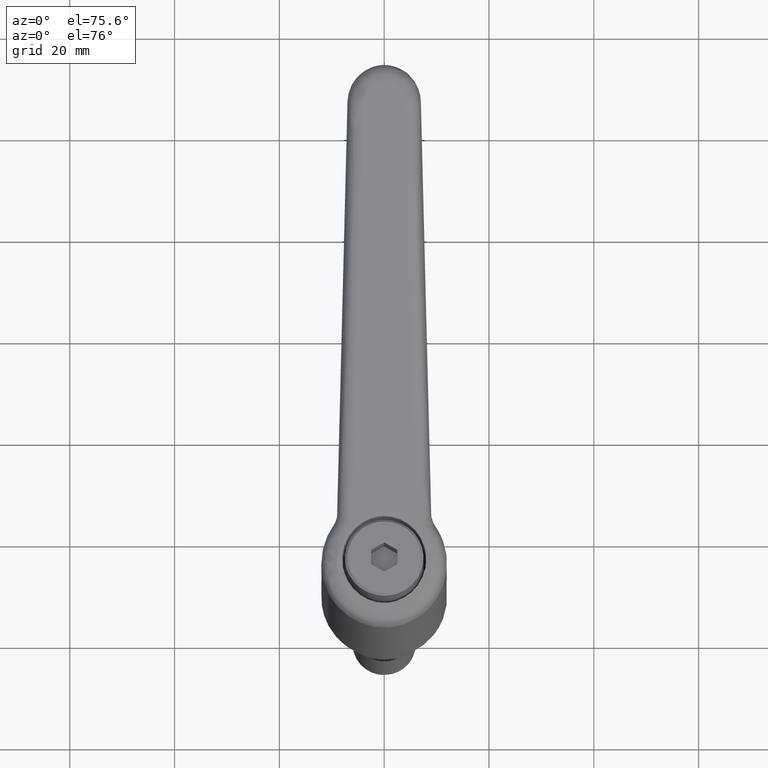
[diagram: clean part render]
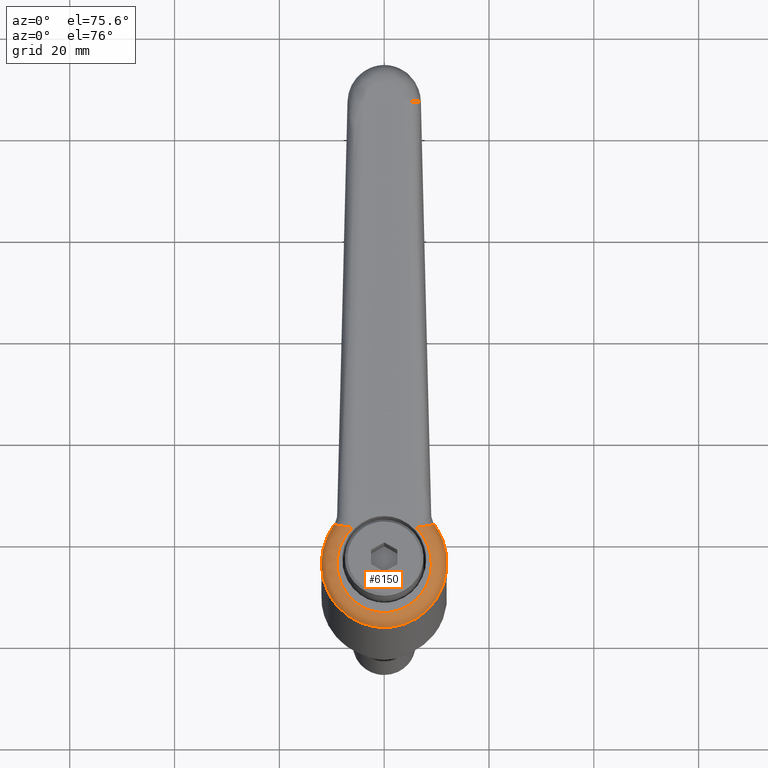
[diagram: same view with one face highlighted and labeled with its STEP entity id]
A machine part, auxiliary view. The second image highlights one B-rep face of the part: STEP entity #6150.
In plain terms, the highlighted face is a freeform B-spline surface patch.
Its self-contained STEP definition (entity closure, byte-faithful):
#1972=CARTESIAN_POINT('',(4.274928216684376,-11.212715493656290,38.901665560539627));
#1973=VERTEX_POINT('',#1972);
#1974=CARTESIAN_POINT('',(-5.540992449780494,10.644125265674511,36.919617074679749));
#1975=VERTEX_POINT('',#1974);
#1976=CARTESIAN_POINT('',(4.274928216684376,-11.212715493656287,38.901665560539634));
#1977=CARTESIAN_POINT('',(-3.362617988830460,-14.124583815908773,37.359469067857439));
#1978=CARTESIAN_POINT('',(-8.868775530244234,-8.083613596884504,36.247652849136401));
#1979=CARTESIAN_POINT('',(-16.236739138144436,-0.000000224872017,34.759896391643792));
#1980=CARTESIAN_POINT('',(-8.868776767336270,8.083613376882697,36.247660168146929));
#1981=CARTESIAN_POINT('',(-7.432376901434004,9.659530965654611,36.537702866726697));
#1982=CARTESIAN_POINT('',(-5.540992449780494,10.644125265674511,36.919617074679756));
#1990=(BOUNDED_CURVE()B_SPLINE_CURVE(2,(#1976,#1977,#1978,#1979,#1980,#1981,#1982),.UNSPECIFIED.,.F.,.U.)B_SPLINE_CURVE_WITH_KNOTS((3,2,2,3),(0.066645576460034,0.333333333333333,0.666666666666667,0.748931757954431),.UNSPECIFIED.)CURVE()GEOMETRIC_REPRESENTATION_ITEM()RATIONAL_B_SPLINE_CURVE((0.916520508219528,0.791235227165871,1.0,0.739064670882372,1.0,0.935602393989807,0.902990837602466))REPRESENTATION_ITEM(''));
#1991=EDGE_CURVE('',#1973,#1975,#1990,.T.);
#2077=CARTESIAN_POINT('',(7.229237784405140,-9.578001934460499,39.498216051846001));
#2078=VERTEX_POINT('',#2077);
#2079=CARTESIAN_POINT('',(7.229237784405140,-9.578001934460499,39.498216051846001));
#2080=CARTESIAN_POINT('',(5.868227456626006,-10.605258929029265,39.223393060285360));
#2081=CARTESIAN_POINT('',(4.274928216684376,-11.212715493656287,38.901665560539634));
#2089=(BOUNDED_CURVE()B_SPLINE_CURVE(2,(#2079,#2080,#2081),.UNSPECIFIED.,.F.,.U.)B_SPLINE_CURVE_WITH_KNOTS((3,3),(0.0,0.066645576460034),.UNSPECIFIED.)CURVE()GEOMETRIC_REPRESENTATION_ITEM()RATIONAL_B_SPLINE_CURVE((1.0,0.947829443716501,0.916520508219528))REPRESENTATION_ITEM(''));
#2090=EDGE_CURVE('',#2078,#1973,#2089,.T.);
#2124=CARTESIAN_POINT('',(7.229237784405140,9.578001934460499,39.498216051846001));
#2125=VERTEX_POINT('',#2124);
#2126=CARTESIAN_POINT('',(-5.540992449780494,10.644125265674511,36.919617074679756));
#2127=CARTESIAN_POINT('',(1.180750076675055,14.143249606889553,38.276889398960996));
#2128=CARTESIAN_POINT('',(7.229237784405140,9.578001934460499,39.498216051846001));
#2136=(BOUNDED_CURVE()B_SPLINE_CURVE(2,(#2126,#2127,#2128),.UNSPECIFIED.,.F.,.U.)B_SPLINE_CURVE_WITH_KNOTS((3,3),(0.748931757954431,1.0),.UNSPECIFIED.)CURVE()GEOMETRIC_REPRESENTATION_ITEM()RATIONAL_B_SPLINE_CURVE((0.902990837602466,0.803462276892565,1.0))REPRESENTATION_ITEM(''));
#2137=EDGE_CURVE('',#1975,#2125,#2136,.T.);
#4712=CARTESIAN_POINT('',(5.899904612967671,6.031578376217630,42.733727815799909));
#4713=VERTEX_POINT('',#4712);
#4714=CARTESIAN_POINT('',(7.193343850307760,9.562292847660899,39.954205445489549));
#4715=VERTEX_POINT('',#4714);
#4716=CARTESIAN_POINT('',(5.899904612967690,6.031578376217580,42.733727815799952));
#4717=CARTESIAN_POINT('',(5.903062447001243,6.058380017504835,42.734578001869821));
#4718=CARTESIAN_POINT('',(5.906329918537725,6.085553640101304,42.735233499928150));
#4719=CARTESIAN_POINT('',(5.913012914266242,6.139714808692082,42.736120896506108));
#4720=CARTESIAN_POINT('',(5.923263585534055,6.220871383675459,42.736822124183490));
#4721=CARTESIAN_POINT('',(5.934195713644809,6.301769850626026,42.735606864537857));
#4722=CARTESIAN_POINT('',(5.956977628652039,6.463215032417098,42.730542391711637));
#4723=CARTESIAN_POINT('',(5.973388286783441,6.570376563205748,42.723657719487449));
#4724=CARTESIAN_POINT('',(6.008718955725053,6.783713625198190,42.702378815481651));
#4725=CARTESIAN_POINT('',(6.027638448427934,6.889889375569534,42.687986332520943));
#4726=CARTESIAN_POINT('',(6.057971486509559,7.048365318422076,42.660296455485017));
#4727=CARTESIAN_POINT('',(6.068425930795687,7.101140585877575,42.650028428734160));
#4728=CARTESIAN_POINT('',(6.089860006844097,7.205735029833877,42.627516861698297));
#4729=CARTESIAN_POINT('',(6.100849572806831,7.257611983315011,42.615266569351540));
#4730=CARTESIAN_POINT('',(6.157149928723335,7.514866896797621,42.548954995472229));
#4731=CARTESIAN_POINT('',(6.206490136694312,7.713902261740103,42.479826131231142));
#4732=CARTESIAN_POINT('',(6.273634826152222,7.953363390981745,42.370920093256473));
#4733=CARTESIAN_POINT('',(6.287339115920344,8.000785769535757,42.348006447096743));
#4734=CARTESIAN_POINT('',(6.315309278628825,8.094654127320540,42.299818340058287));
#4735=CARTESIAN_POINT('',(6.329606480239138,8.141194066480958,42.274484363482742));
#4736=CARTESIAN_POINT('',(6.372941325866331,8.277979642653600,42.195551344041419));
#4737=CARTESIAN_POINT('',(6.402515492064046,8.365738020171479,42.138876367873792));
#4738=CARTESIAN_POINT('',(6.462975081801340,8.534276104056485,42.017246628684987));
#4739=CARTESIAN_POINT('',(6.493860423323230,8.615057178806557,41.952293573192982));
#4740=CARTESIAN_POINT('',(6.556927542621067,8.769336718705933,41.813712553301912));
#4741=CARTESIAN_POINT('',(6.589162739936104,8.842951200875664,41.739959499211643));
#4742=CARTESIAN_POINT('',(6.687527949047126,9.051336605413759,41.505452973747509));
#4743=CARTESIAN_POINT('',(6.753275789578851,9.169569442397027,41.336438669730533));
#4744=CARTESIAN_POINT('',(6.851858140654759,9.315249584271490,41.063401659352593));
#4745=CARTESIAN_POINT('',(6.884715090614900,9.358492837390545,40.969109067191333));
#4746=CARTESIAN_POINT('',(6.950377427781666,9.433650707294339,40.773548434986992));
#4747=CARTESIAN_POINT('',(6.982478838580379,9.464758305950204,40.674375422595702));
#4748=CARTESIAN_POINT('',(7.076617940097184,9.539209705798207,40.372783931191137));
#4749=CARTESIAN_POINT('',(7.136514588811961,9.563928737129537,40.166344954886597));
#4750=CARTESIAN_POINT('',(7.193343850307760,9.562292847660899,39.954205445489549));
#4751=B_SPLINE_CURVE_WITH_KNOTS('',3,(#4716,#4717,#4718,#4719,#4720,#4721,#4722,#4723,#4724,#4725,#4726,#4727,#4728,#4729,#4730,#4731,#4732,#4733,#4734,#4735,#4736,#4737,#4738,#4739,#4740,#4741,#4742,#4743,#4744,#4745,#4746,#4747,#4748,#4749,#4750),.UNSPECIFIED.,.F.,.U.,(4,2,1,2,2,2,2,2,2,2,2,2,2,2,2,2,2,4),(0.0,0.015624999999999,0.031249999999999,0.062499999999998,0.124999999999996,0.187499999999994,0.218749999999993,0.249999999999992,0.374999999999989,0.406249999999988,0.437499999999988,0.499999999999989,0.562499999999989,0.624999999999990,0.749999999999994,0.812499999999997,0.874999999999999,1.0),.UNSPECIFIED.);
#4752=EDGE_CURVE('',#4713,#4715,#4751,.T.);
#4871=CARTESIAN_POINT('',(7.193343850307760,9.562292847660899,39.954205445489549));
#4872=CARTESIAN_POINT('',(7.233525599419973,9.561136174171333,39.804209891807908));
#4873=CARTESIAN_POINT('',(7.244245228495218,9.566674688694032,39.652125833177287));
#4874=CARTESIAN_POINT('',(7.229237784405140,9.578001934460499,39.498216051846001));
#4875=QUASI_UNIFORM_CURVE('',3,(#4871,#4872,#4873,#4874),.UNSPECIFIED.,.F.,.U.);
#4876=EDGE_CURVE('',#4715,#2125,#4875,.T.);
#5053=CARTESIAN_POINT('',(5.899904612967671,-6.031578376217630,42.733727815799909));
#5054=VERTEX_POINT('',#5053);
#5093=CARTESIAN_POINT('',(7.193343850307760,-9.562292847660899,39.954205445489549));
#5094=VERTEX_POINT('',#5093);
#5095=CARTESIAN_POINT('',(7.193343850307760,-9.562292847660899,39.954205445489549));
#5096=CARTESIAN_POINT('',(7.136514588811958,-9.563928737129540,40.166344954886590));
#5097=CARTESIAN_POINT('',(7.076617940097188,-9.539209705798205,40.372783931191123));
#5098=CARTESIAN_POINT('',(6.982478838580382,-9.464758305950204,40.674375422595702));
#5099=CARTESIAN_POINT('',(6.950377427781669,-9.433650707294342,40.773548434986992));
#5100=CARTESIAN_POINT('',(6.884715090614900,-9.358492837390550,40.969109067191333));
#5101=CARTESIAN_POINT('',(6.851858140654762,-9.315249584271488,41.063401659352593));
#5102=CARTESIAN_POINT('',(6.753275789578856,-9.169569442397032,41.336438669730519));
#5103=CARTESIAN_POINT('',(6.687527949047131,-9.051336605413763,41.505452973747509));
#5104=CARTESIAN_POINT('',(6.589162739936110,-8.842951200875667,41.739959499211629));
#5105=CARTESIAN_POINT('',(6.556927542621073,-8.769336718705937,41.813712553301897));
#5106=CARTESIAN_POINT('',(6.493860423323240,-8.615057178806563,41.952293573192968));
#5107=CARTESIAN_POINT('',(6.462975081801325,-8.534276104056499,42.017246628684987));
#5108=CARTESIAN_POINT('',(6.402515492064026,-8.365738020171499,42.138876367873770));
#5109=CARTESIAN_POINT('',(6.372941325866344,-8.277979642653609,42.195551344041412));
#5110=CARTESIAN_POINT('',(6.329606480239153,-8.141194066480974,42.274484363482742));
#5111=CARTESIAN_POINT('',(6.315309278628827,-8.094654127320551,42.299818340058302));
#5112=CARTESIAN_POINT('',(6.287339115920350,-8.000785769535776,42.348006447096729));
#5113=CARTESIAN_POINT('',(6.273634826152231,-7.953363390981754,42.370920093256437));
#5114=CARTESIAN_POINT('',(6.206490136694323,-7.713902261740119,42.479826131231128));
#5115=CARTESIAN_POINT('',(6.157149928723298,-7.514866896797646,42.548954995472222));
#5116=CARTESIAN_POINT('',(6.100849572806784,-7.257611983315041,42.615266569351533));
#5117=CARTESIAN_POINT('',(6.089860006844115,-7.205735029833892,42.627516861698297));
#5118=CARTESIAN_POINT('',(6.068425930795709,-7.101140585877590,42.650028428734167));
#5119=CARTESIAN_POINT('',(6.057971486509536,-7.048365318422100,42.660296455485003));
#5120=CARTESIAN_POINT('',(6.027638448427908,-6.889889375569560,42.687986332520950));
#5121=CARTESIAN_POINT('',(6.008718955725077,-6.783713625198208,42.702378815481659));
#5122=CARTESIAN_POINT('',(5.973388286783472,-6.570376563205770,42.723657719487463));
#5123=CARTESIAN_POINT('',(5.956977628652051,-6.463215032417121,42.730542391711658));
#5124=CARTESIAN_POINT('',(5.934195713644817,-6.301769850626049,42.735606864537893));
#5125=CARTESIAN_POINT('',(5.923263585534473,-6.220871383675427,42.736822124183583));
#5126=CARTESIAN_POINT('',(5.913012914266074,-6.139714808692129,42.736120896506073));
#5127=CARTESIAN_POINT('',(5.906329918537385,-6.085553640101374,42.735233499928043));
#5128=CARTESIAN_POINT('',(5.903062447002071,-6.058380017504752,42.734578001870027));
#5129=CARTESIAN_POINT('',(5.899904612967660,-6.031578376217611,42.733727815799952));
#5130=B_SPLINE_CURVE_WITH_KNOTS('',3,(#5095,#5096,#5097,#5098,#5099,#5100,#5101,#5102,#5103,#5104,#5105,#5106,#5107,#5108,#5109,#5110,#5111,#5112,#5113,#5114,#5115,#5116,#5117,#5118,#5119,#5120,#5121,#5122,#5123,#5124,#5125,#5126,#5127,#5128,#5129),.UNSPECIFIED.,.F.,.U.,(4,2,2,2,2,2,2,2,2,2,2,2,2,2,2,1,2,4),(0.0,0.124999999999993,0.187499999999992,0.249999999999991,0.374999999999988,0.437499999999988,0.499999999999987,0.562499999999987,0.593749999999988,0.624999999999989,0.749999999999990,0.781249999999992,0.812499999999993,0.874999999999995,0.937499999999998,0.968749999999999,0.984374999999999,1.0),.UNSPECIFIED.);
#5131=EDGE_CURVE('',#5094,#5054,#5130,.T.);
#5220=CARTESIAN_POINT('',(7.229237784405140,-9.578001934460499,39.498216051846001));
#5221=CARTESIAN_POINT('',(7.244279868077533,-9.566648543598319,39.652481081579850));
#5222=CARTESIAN_POINT('',(7.233429013292587,-9.561138954503587,39.804570440812803));
#5223=CARTESIAN_POINT('',(7.193343850307774,-9.562292847660901,39.954205445489549));
#5224=QUASI_UNIFORM_CURVE('',3,(#5220,#5221,#5222,#5223),.UNSPECIFIED.,.F.,.U.);
#5225=EDGE_CURVE('',#2078,#5094,#5224,.T.);
#5944=CARTESIAN_POINT('',(9.137567897590683,7.778487561566868,39.860242653875886));
#5945=CARTESIAN_POINT('',(8.348283579242407,8.705685073991763,39.700995040787753));
#5946=CARTESIAN_POINT('',(7.416945391610426,9.511679812896661,39.513091861161271));
#5947=CARTESIAN_POINT('',(5.354925749645751,10.807770126053732,39.097092539389266));
#5948=CARTESIAN_POINT('',(4.224575709788833,11.297635337579811,38.869066830427421));
#5949=CARTESIAN_POINT('',(1.868494134375142,11.916053695891380,38.393807849429443));
#5950=CARTESIAN_POINT('',(0.643090557514809,12.044518930398199,38.146641946663401));
#5951=CARTESIAN_POINT('',(-1.790352609864614,11.928061365437859,37.655848294636137));
#5952=CARTESIAN_POINT('',(-2.998050938007279,11.683150167701376,37.412287885219733));
#5953=CARTESIAN_POINT('',(-5.284861767974302,10.842257845392940,36.951130602866350));
#5954=CARTESIAN_POINT('',(-6.363648876510056,10.246389522437219,36.733595875342402));
#5955=CARTESIAN_POINT('',(-8.293206981364193,8.758267795643985,36.344527407392988));
#5956=CARTESIAN_POINT('',(-9.143698960218790,7.866221315403959,36.173045665007386));
#5957=CARTESIAN_POINT('',(-10.538214386953644,5.867769153065113,35.891886153881565));
#5958=CARTESIAN_POINT('',(-11.082033407403404,4.761647311042348,35.782245845997302));
#5959=CARTESIAN_POINT('',(-11.812980271252306,2.436852764631194,35.634881967994765));
#5960=CARTESIAN_POINT('',(-11.999999999999996,1.218514347952247,35.597178016000349));
#5961=CARTESIAN_POINT('',(-11.999999999999996,-1.218514347952247,35.597178016000349));
#5962=CARTESIAN_POINT('',(-11.812980271252522,-2.436852764630437,35.634881967994751));
#5963=CARTESIAN_POINT('',(-11.082033407403264,-4.761647311042875,35.782245845997288));
#5964=CARTESIAN_POINT('',(-10.538214386953655,-5.867769153065092,35.891886153881543));
#5965=CARTESIAN_POINT('',(-9.143698960218798,-7.866221315403957,36.173045665007400));
#5966=CARTESIAN_POINT('',(-8.293206981364042,-8.758267795644109,36.344527407392995));
#5967=CARTESIAN_POINT('',(-6.363648876510421,-10.246389522436948,36.733595875342381));
#5968=CARTESIAN_POINT('',(-5.284861767974965,-10.842257845392748,36.951130602866328));
#5969=CARTESIAN_POINT('',(-2.998050938006848,-11.683150167701497,37.412287885219762));
#5970=CARTESIAN_POINT('',(-1.790352609864723,-11.928061365437848,37.655848294639419));
#5971=CARTESIAN_POINT('',(0.643090557514673,-12.044518930398205,38.146641946660111));
#5972=CARTESIAN_POINT('',(1.868494134375941,-11.916053695891151,38.393807849431369));
#5973=CARTESIAN_POINT('',(4.224575709787849,-11.297635337580077,38.869066830425425));
#5974=CARTESIAN_POINT('',(5.354925749646639,-10.807770126053105,39.097092539389244));
#5975=CARTESIAN_POINT('',(7.416945391609457,-9.511679812897333,39.513091861161286));
#5976=CARTESIAN_POINT('',(8.348283579242604,-8.705685073991729,39.700995040792179));
#5977=CARTESIAN_POINT('',(9.137567897590639,-7.778487561566919,39.860242653875879));
#5978=CARTESIAN_POINT('',(9.136280307316214,7.779999107826224,39.871615968265793));
#5979=CARTESIAN_POINT('',(8.346698858994325,8.707231168286844,39.712245313065139));
#5980=CARTESIAN_POINT('',(7.415066133096839,9.513155961846206,39.524205505308331));
#5981=CARTESIAN_POINT('',(5.352560547634152,10.808951520145170,39.107924335779060));
#5982=CARTESIAN_POINT('',(4.222022966520012,11.298588365314645,38.879752429948269));
#5983=CARTESIAN_POINT('',(1.865730620783636,11.916485503822393,38.404208182763284));
#5984=CARTESIAN_POINT('',(0.640307927601847,12.044657798516694,38.156903465565435));
#5985=CARTESIAN_POINT('',(-1.793011739057554,11.927652303769150,37.665848817427310));
#5986=CARTESIAN_POINT('',(-3.000564517151254,11.682488701497528,37.422167601148956));
#5987=CARTESIAN_POINT('',(-5.286976934300750,10.841208957158187,36.960790724853425));
#5988=CARTESIAN_POINT('',(-6.365510815352682,10.245209257633189,36.743159063076256));
#5989=CARTESIAN_POINT('',(-8.294539188568864,8.756978217151277,36.353921644926594));
#5990=CARTESIAN_POINT('',(-9.144756618442958,7.864956505783399,36.182369664241008));
#5991=CARTESIAN_POINT('',(-10.538786673432231,5.866693748290433,35.901096187587726));
#5992=CARTESIAN_POINT('',(-11.082397692646055,4.760737143303605,35.791413493855529));
#5993=CARTESIAN_POINT('',(-11.813057429930973,2.436356703144694,35.643992364794798));
#5994=CARTESIAN_POINT('',(-12.000000000000004,1.218265772235479,35.606274258454746));
#5995=CARTESIAN_POINT('',(-12.000000000000004,-1.218265772235479,35.606274258454746));
#5996=CARTESIAN_POINT('',(-11.813057429931193,-2.436356703143940,35.643992364794784));
#5997=CARTESIAN_POINT('',(-11.082397692645904,-4.760737143304131,35.791413493855515));
#5998=CARTESIAN_POINT('',(-10.538786673432240,-5.866693748290421,35.901096187587726));
#5999=CARTESIAN_POINT('',(-9.144756618442962,-7.864956505783386,36.182369664240994));
#6000=CARTESIAN_POINT('',(-8.294539188568701,-8.756978217151383,36.353921644926544));
#6001=CARTESIAN_POINT('',(-6.365510815353043,-10.245209257632908,36.743159063076213));
#6002=CARTESIAN_POINT('',(-5.286976934301403,-10.841208957157969,36.960790724853425));
#6003=CARTESIAN_POINT('',(-3.000564517150830,-11.682488701497659,37.422167601148914));
#6004=CARTESIAN_POINT('',(-1.793011739057664,-11.927652303769142,37.665848817430600));
#6005=CARTESIAN_POINT('',(0.640307927601712,-12.044657798516704,38.156903465562131));
#6006=CARTESIAN_POINT('',(1.865730620784435,-11.916485503822173,38.404208182765238));
#6007=CARTESIAN_POINT('',(4.222022966519031,-11.298588365314915,38.879752429946308));
#6008=CARTESIAN_POINT('',(5.352560547635052,-10.808951520144580,39.107924335779082));
#6009=CARTESIAN_POINT('',(7.415066133095863,-9.513155961846856,39.524205505308331));
#6010=CARTESIAN_POINT('',(8.346698858994470,-8.707231168286773,39.712245313069566));
#6011=CARTESIAN_POINT('',(9.136280307316170,-7.779999107826274,39.871615968265779));
#6012=CARTESIAN_POINT('',(8.726113343900352,8.261508134068814,43.494630152016263));
#6013=CARTESIAN_POINT('',(7.847240206467395,9.194516021394300,43.258010465645917));
#6014=CARTESIAN_POINT('',(6.830009381264733,9.972715359024603,42.984140633290963));
#6015=CARTESIAN_POINT('',(4.635190479702193,11.167270494796075,42.393227863293873));
#6016=CARTESIAN_POINT('',(3.458360388000137,11.583690132606110,42.076388998456792));
#6017=CARTESIAN_POINT('',(1.061451894741543,12.042156654391377,41.431067493272323));
#6018=CARTESIAN_POINT('',(-0.158486673803793,12.084521922323528,41.102622500273654));
#6019=CARTESIAN_POINT('',(-2.536601535016644,11.813263697313662,40.462360818999436));
#6020=CARTESIAN_POINT('',(-3.694717204961421,11.499817491638320,40.150560452232291));
#6021=CARTESIAN_POINT('',(-5.857884751008322,10.558101910407965,39.568169200872546));
#6022=CARTESIAN_POINT('',(-6.862856742834937,9.929946543197579,39.297599823585983));
#6023=CARTESIAN_POINT('',(-8.643982229077075,8.418716850682879,38.818066047913170));
#6024=CARTESIAN_POINT('',(-9.420033574721099,7.535764206546207,38.609129151122289));
#6025=CARTESIAN_POINT('',(-10.685879804987463,5.590285582248153,38.268324403280921));
#6026=CARTESIAN_POINT('',(-11.175581218032121,4.527917833982587,38.136481717648756));
#6027=CARTESIAN_POINT('',(-11.832668780245736,2.310273211863219,37.959573531178251));
#6028=CARTESIAN_POINT('',(-12.0,1.155187578871391,37.914522819019339));
#6029=CARTESIAN_POINT('',(-12.0,-1.155187578871391,37.914522819019339));
#6030=CARTESIAN_POINT('',(-11.832668780247358,-2.310273211862912,37.959573531178236));
#6031=CARTESIAN_POINT('',(-11.175581218030565,-4.527917833982674,38.136481717648749));
#6032=CARTESIAN_POINT('',(-10.685879804986669,-5.590285582248543,38.268324403280907));
#6033=CARTESIAN_POINT('',(-9.420033574721909,-7.535764206545794,38.609129151122296));
#6034=CARTESIAN_POINT('',(-8.643982229076768,-8.418716850681989,38.818066047913135));
#6035=CARTESIAN_POINT('',(-6.862856742835438,-9.929946543198307,39.297599823585948));
#6036=CARTESIAN_POINT('',(-5.857884751005567,-10.558101910400563,39.568169200872518));
#6037=CARTESIAN_POINT('',(-3.694717204964388,-11.499817491645629,40.150560452232263));
#6038=CARTESIAN_POINT('',(-2.536601535016966,-11.813263697313651,40.462360819002697));
#6039=CARTESIAN_POINT('',(-0.158486673803708,-12.084521922323516,41.102622500270350));
#6040=CARTESIAN_POINT('',(1.061451894742547,-12.042156654391944,41.431067493274952));
#6041=CARTESIAN_POINT('',(3.458360387998945,-11.583690132605557,42.076388998454107));
#6042=CARTESIAN_POINT('',(4.635190479704586,-11.167270494803409,42.393227863300375));
#6043=CARTESIAN_POINT('',(6.830009381262252,-9.972715359017309,42.984140633284461));
#6044=CARTESIAN_POINT('',(7.847240206450922,-9.194516021382437,43.258010465649896));
#6045=CARTESIAN_POINT('',(8.726113343900305,-8.261508134068864,43.494630152016242));
#6046=CARTESIAN_POINT('',(6.062911166518767,5.828454449812790,42.777614194770500));
#6047=CARTESIAN_POINT('',(5.471332521756670,6.523057138893510,42.618343024199021));
#6048=CARTESIAN_POINT('',(4.773320644337166,7.126784187747522,42.430416753070404));
#6049=CARTESIAN_POINT('',(3.228054971542848,8.097424954252745,42.014383695202085));
#6050=CARTESIAN_POINT('',(2.381055151041382,8.464173543349249,41.786345286311601));
#6051=CARTESIAN_POINT('',(0.615759060486475,8.926928476627138,41.311073270938017));
#6052=CARTESIAN_POINT('',(-0.302286175584078,9.022877148451068,41.063907250526007));
#6053=CARTESIAN_POINT('',(-2.125200570938834,8.935087548103672,40.573122614923392));
#6054=CARTESIAN_POINT('',(-3.029814588200672,8.751367875122218,40.329572691814455));
#6055=CARTESIAN_POINT('',(-4.742591839678579,8.121046150876925,39.868440363616713));
#6056=CARTESIAN_POINT('',(-5.550517416646463,7.674536494990234,39.650921943170516));
#6057=CARTESIAN_POINT('',(-6.995513243706771,6.559644676040315,39.261884612488259));
#6058=CARTESIAN_POINT('',(-7.632383787859063,5.891420574296722,39.090419469235059));
#6059=CARTESIAN_POINT('',(-8.676588965222310,4.394539465072601,38.809287311426360));
#6060=CARTESIAN_POINT('',(-9.083779496354060,3.566092396108943,38.699659093583819));
#6061=CARTESIAN_POINT('',(-9.631072438957082,1.824977189378793,38.552310996444511));
#6062=CARTESIAN_POINT('',(-9.771099353002940,0.912552264036461,38.514611443377362));
#6063=CARTESIAN_POINT('',(-9.771099353002940,-0.912552264036461,38.514611443377362));
#6064=CARTESIAN_POINT('',(-9.631072438957849,-1.824977189378708,38.552310996444305));
#6065=CARTESIAN_POINT('',(-9.083779496353348,-3.566092396108857,38.699659093584010));
#6066=CARTESIAN_POINT('',(-8.676588965221571,-4.394539465072590,38.809287311426573));
#6067=CARTESIAN_POINT('',(-7.632383787859818,-5.891420574296718,39.090419469234881));
#6068=CARTESIAN_POINT('',(-6.995513243706474,-6.559644676040668,39.261884612488373));
#6069=CARTESIAN_POINT('',(-5.550517416646922,-7.674536494989769,39.650921943170403));
#6070=CARTESIAN_POINT('',(-4.742591839678481,-8.121046150876097,39.868440363616777));
#6071=CARTESIAN_POINT('',(-3.029814588200938,-8.751367875122988,40.329572691814356));
#6072=CARTESIAN_POINT('',(-2.125200570938095,-8.935087548102842,40.573122614923570));
#6073=CARTESIAN_POINT('',(-0.302286175584998,-9.022877148451887,41.063907250525773));
#6074=CARTESIAN_POINT('',(0.615759060487598,-8.926928476626880,41.311073270938337));
#6075=CARTESIAN_POINT('',(2.381055151040122,-8.464173543349549,41.786345286311281));
#6076=CARTESIAN_POINT('',(3.228054971542435,-8.097424954252348,42.014383695201957));
#6077=CARTESIAN_POINT('',(4.773320644337513,-7.126784187747957,42.430416753070510));
#6078=CARTESIAN_POINT('',(5.471332521757333,-6.523057138894148,42.618343024199149));
#6079=CARTESIAN_POINT('',(6.062911166518735,-5.828454449812829,42.777614194770486));
#6080=CARTESIAN_POINT('',(6.054532537389557,5.820799884701297,42.775358410047723));
#6081=CARTESIAN_POINT('',(5.463777520996210,6.514562333300383,42.616308985571287));
#6082=CARTESIAN_POINT('',(4.766699865819573,7.117622723680048,42.428634235810968));
#6083=CARTESIAN_POINT('',(3.223405398957268,8.087281318771650,42.013131887222038));
#6084=CARTESIAN_POINT('',(2.377446070196919,8.453722849172682,41.785373610718032));
#6085=CARTESIAN_POINT('',(0.614224291329765,8.916201007491720,41.310660063865207));
#6086=CARTESIAN_POINT('',(-0.302788206182978,9.012188381519211,41.063772088444253));
#6087=CARTESIAN_POINT('',(-2.123726141555727,8.924772386364413,40.573519576672865));
#6088=CARTESIAN_POINT('',(-3.027401638113655,8.741393675030119,40.330222332210184));
#6089=CARTESIAN_POINT('',(-4.738450695239628,8.111997227671662,39.869555287098429));
#6090=CARTESIAN_POINT('',(-5.545593553591891,7.666074255089573,39.652247598583180));
#6091=CARTESIAN_POINT('',(-6.989214857740576,6.552541628182680,39.263580331754717));
#6092=CARTESIAN_POINT('',(-7.625500259609027,5.885088861044751,39.092272726805753));
#6093=CARTESIAN_POINT('',(-8.668754359371215,4.389877024304621,38.811396628346323));
#6094=CARTESIAN_POINT('',(-9.075583981338159,3.562324039511337,38.701865578353967));
#6095=CARTESIAN_POINT('',(-9.622391467662650,1.823063650206565,38.554648180979513));
#6096=CARTESIAN_POINT('',(-9.762296498621870,0.911593996404804,38.516981442588921));
#6097=CARTESIAN_POINT('',(-9.762296498621870,-0.911593996404804,38.516981442588921));
#6098=CARTESIAN_POINT('',(-9.622391467663414,-1.823063650206481,38.554648180979306));
#6099=CARTESIAN_POINT('',(-9.075583981337450,-3.562324039511250,38.701865578354145));
#6100=CARTESIAN_POINT('',(-8.668754359370471,-4.389877024304607,38.811396628346507));
#6101=CARTESIAN_POINT('',(-7.625500259609773,-5.885088861044741,39.092272726805533));
#6102=CARTESIAN_POINT('',(-6.989214857740275,-6.552541628183033,39.263580331754795));
#6103=CARTESIAN_POINT('',(-5.545593553592348,-7.666074255089099,39.652247598583045));
#6104=CARTESIAN_POINT('',(-4.738450695239528,-8.111997227670836,39.869555287098414));
#6105=CARTESIAN_POINT('',(-3.027401638113915,-8.741393675030876,40.330222332210120));
#6106=CARTESIAN_POINT('',(-2.123726141554987,-8.924772386363593,40.573519576673064));
#6107=CARTESIAN_POINT('',(-0.302788206183902,-9.012188381520023,41.063772088444018));
#6108=CARTESIAN_POINT('',(0.614224291330887,-8.916201007491457,41.310660063865505));
#6109=CARTESIAN_POINT('',(2.377446070195659,-8.453722849172978,41.785373610717706));
#6110=CARTESIAN_POINT('',(3.223405398956853,-8.087281318771241,42.013131887221888));
#6111=CARTESIAN_POINT('',(4.766699865819922,-7.117622723680495,42.428634235811110));
#6112=CARTESIAN_POINT('',(5.463777520996940,-6.514562333301075,42.616308985571436));
#6113=CARTESIAN_POINT('',(6.054532537389524,-5.820799884701335,42.775358410047716));
#6121=(BOUNDED_SURFACE()B_SPLINE_SURFACE(3,2,((#5944,#5978,#6012,#6046,#6080),(#5945,#5979,#6013,#6047,#6081),(#5946,#5980,#6014,#6048,#6082),(#5947,#5981,#6015,#6049,#6083),(#5948,#5982,#6016,#6050,#6084),(#5949,#5983,#6017,#6051,#6085),(#5950,#5984,#6018,#6052,#6086),(#5951,#5985,#6019,#6053,#6087),(#5952,#5986,#6020,#6054,#6088),(#5953,#5987,#6021,#6055,#6089),(#5954,#5988,#6022,#6056,#6090),(#5955,#5989,#6023,#6057,#6091),(#5956,#5990,#6024,#6058,#6092),(#5957,#5991,#6025,#6059,#6093),(#5958,#5992,#6026,#6060,#6094),(#5959,#5993,#6027,#6061,#6095),(#5960,#5994,#6028,#6062,#6096),(#5961,#5995,#6029,#6063,#6097),(#5962,#5996,#6030,#6064,#6098),(#5963,#5997,#6031,#6065,#6099),(#5964,#5998,#6032,#6066,#6100),(#5965,#5999,#6033,#6067,#6101),(#5966,#6000,#6034,#6068,#6102),(#5967,#6001,#6035,#6069,#6103),(#5968,#6002,#6036,#6070,#6104),(#5969,#6003,#6037,#6071,#6105),(#5970,#6004,#6038,#6072,#6106),(#5971,#6005,#6039,#6073,#6107),(#5972,#6006,#6040,#6074,#6108),(#5973,#6007,#6041,#6075,#6109),(#5974,#6008,#6042,#6076,#6110),(#5975,#6009,#6043,#6077,#6111),(#5976,#6010,#6044,#6078,#6112),(#5977,#6011,#6045,#6079,#6113)),.UNSPECIFIED.,.F.,.F.,.U.)B_SPLINE_SURFACE_WITH_KNOTS((4,2,2,2,2,2,2,2,2,2,2,2,2,2,2,2,4),(3,1,1,3),(0.0,3.727551530912221,7.455103061824452,11.182654592736680,14.910206123648900,18.637757654561138,22.365309185473372,26.092860716385580,29.820412247297821,33.547963778210047,37.275515309122270,41.003066840034499,44.730618370946729,48.458169901858952,52.185721432771167,55.913272963683411,59.640824494595627),(0.0,0.028430901775100,5.714548465250838,5.743042289993817),.UNSPECIFIED.)GEOMETRIC_REPRESENTATION_ITEM()RATIONAL_B_SPLINE_SURFACE(((1.003667207572180,1.001833603786090,0.633283292418404,1.001837661898388,1.003675323796775),(1.003599672971653,1.001799836485827,0.640036677893729,1.001803819864696,1.003607639729393),(1.003521063812501,1.001760531906251,0.647897507002132,1.001764428296645,1.003528856593290),(1.003350841652379,1.001675420826190,0.664919535040810,1.001679128849652,1.003358257699303),(1.003259256954598,1.001629628477299,0.674077903683467,1.001633235153624,1.003266470307248),(1.003072500451681,1.001536250225841,0.692753347743086,1.001539650238418,1.003079300476835),(1.002977355109314,1.001488677554657,0.702267776912371,1.001491972279907,1.002983944559813),(1.002792139626317,1.001396069813159,0.720789120681678,1.001399159579945,1.002798319159890),(1.002702081970669,1.001351040985334,0.729794786797342,1.001354031094800,1.002708062189600),(1.002534352933601,1.001267176466801,0.746567505283678,1.001269980968211,1.002539961936421),(1.002456685998715,1.001228342999357,0.754334113006008,1.001231061554953,1.002462123109905),(1.002319466553707,1.001159733276853,0.768055905977710,1.001162299986144,1.002324599972288),(1.002259914832972,1.001129957416486,0.774011012289208,1.001132458226161,1.002264916452321),(1.002163007691888,1.001081503845944,0.783701619384596,1.001083897418695,1.002167794837389),(1.002125651874284,1.001062825937142,0.787437159893632,1.001065178172144,1.002130356344289),(1.002075574443000,1.001037787221500,0.792444847722323,1.001040084041085,1.002080168082169),(1.002062852412237,1.001031426206118,0.793717036749947,1.001033708947572,1.002067417895143),(1.002062852412237,1.001031426206118,0.793717036749947,1.001033708947572,1.002067417895143),(1.002075574443000,1.001037787221500,0.792444847722324,1.001040084041085,1.002080168082169),(1.002125651874284,1.001062825937142,0.787437159893632,1.001065178172144,1.002130356344289),(1.002163007691889,1.001081503845944,0.783701619384545,1.001083897418695,1.002167794837390),(1.002259914832971,1.001129957416486,0.774011012289260,1.001132458226160,1.002264916452321),(1.002319466553705,1.001159733276853,0.768055905977815,1.001162299986143,1.002324599972287),(1.002456685998716,1.001228342999358,0.754334113005905,1.001231061554953,1.002462123109906),(1.002534352933594,1.001267176466797,0.746567505284359,1.001269980968207,1.002539961936415),(1.002702081970675,1.001351040985338,0.729794786796663,1.001354031094804,1.002708062189607),(1.002792139626318,1.001396069813159,0.720789120681521,1.001399159579946,1.002798319159891),(1.002977355109312,1.001488677554656,0.702267776912530,1.001491972279906,1.002983944559812),(1.003072500451680,1.001536250225840,0.692753347743168,1.001539650238417,1.003079300476834),(1.003259256954599,1.001629628477299,0.674077903683389,1.001633235153624,1.003266470307249),(1.003350841652389,1.001675420826194,0.664919535039822,1.001679128849657,1.003358257699313),(1.003521063812491,1.001760531906246,0.647897507003120,1.001764428296640,1.003528856593280),(1.003599672971660,1.001799836485830,0.640036677892986,1.001803819864700,1.003607639729400),(1.003667207572180,1.001833603786090,0.633283292418404,1.001837661898388,1.003675323796775)))REPRESENTATION_ITEM('')SURFACE());
#6122=CARTESIAN_POINT('',(5.899904612967675,6.031578376217627,42.733727815799952));
#6123=CARTESIAN_POINT('',(1.757638131539693,10.619036841369187,41.618502245780277));
#6124=CARTESIAN_POINT('',(-4.011141137511500,8.399953130100588,40.065369395083657));
#6125=CARTESIAN_POINT('',(-9.779920406562695,6.180869418831987,38.512236544387058));
#6126=CARTESIAN_POINT('',(-9.779920406562695,1.019790E-014,38.512236544387051));
#6127=CARTESIAN_POINT('',(-9.779920406562695,-6.180869418831974,38.512236544387058));
#6128=CARTESIAN_POINT('',(-4.011141137511519,-8.399953130100581,40.065369395083657));
#6129=CARTESIAN_POINT('',(1.757638131539669,-10.619036841369194,41.618502245780277));
#6130=CARTESIAN_POINT('',(5.899904612967661,-6.031578376217643,42.733727815799952));
#6138=(BOUNDED_CURVE()B_SPLINE_CURVE(2,(#6122,#6123,#6124,#6125,#6126,#6127,#6128,#6129,#6130),.UNSPECIFIED.,.F.,.U.)B_SPLINE_CURVE_WITH_KNOTS((3,2,2,2,3),(0.0,0.250000000000000,0.500000000000000,0.750000000000000,1.0),.UNSPECIFIED.)CURVE()GEOMETRIC_REPRESENTATION_ITEM()RATIONAL_B_SPLINE_CURVE((1.0,0.824325337976756,1.0,0.824325337976756,1.0,0.824325337976756,1.0,0.824325337976756,1.0))REPRESENTATION_ITEM(''));
#6139=EDGE_CURVE('',#4713,#5054,#6138,.T.);
#6140=ORIENTED_EDGE('',*,*,#6139,.F.);
#6141=ORIENTED_EDGE('',*,*,#4752,.T.);
#6142=ORIENTED_EDGE('',*,*,#4876,.T.);
#6143=ORIENTED_EDGE('',*,*,#2137,.F.);
#6144=ORIENTED_EDGE('',*,*,#1991,.F.);
#6145=ORIENTED_EDGE('',*,*,#2090,.F.);
#6146=ORIENTED_EDGE('',*,*,#5225,.T.);
#6147=ORIENTED_EDGE('',*,*,#5131,.T.);
#6148=EDGE_LOOP('',(#6140,#6141,#6142,#6143,#6144,#6145,#6146,#6147));
#6149=FACE_OUTER_BOUND('',#6148,.T.);
#6150=ADVANCED_FACE('',(#6149),#6121,.T.);